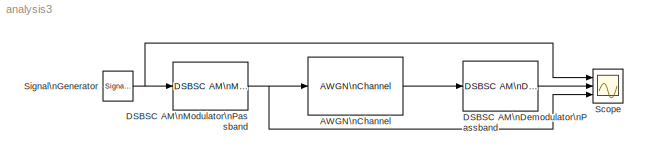
MODEL analysis3
KIND model
BLOCK [Reference] AWGN\nChannel  REF=commchan3/AWGN\nChannel
  EbNodB = 10
  EsNodB = 10
  InputProcessing = Columns as channels (frame based)
  Ports = [1, 1]
  Ps = 0.25
  SID = 4
  SNRdB = 10
  SourceBlock = commchan3/AWGN\nChannel
  SourceProductBaseCode = CM
  SourceProductName = Communications System Toolbox
  SourceType = AWGN Channel
  Tsym = 1
  UserData = DataTag0
  UserDataPersistent = on
  bitsPerSym = 1
  noiseMode = Signal to noise ratio  (Eb/No)
  seed = 67
  variance = 1
BLOCK [Reference] DSBSC AM\nDemodulator\nPassband  REF=commanapbnd3/DSBSC AM\nDemodulator\nPassband
  Fc = 300
  Ph = 0
  Ports = [1, 1]
  Rp = 0.1
  Rs = 50
  SID = 6
  SourceBlock = commanapbnd3/DSBSC AM\nDemodulator\nPassband
  SourceProductBaseCode = CM
  SourceProductName = Communications System Toolbox
  SourceType = DSBSC AM Demodulator Passband
  cf = 300
  method = Butterworth
  n = 4
BLOCK [Reference] DSBSC AM\nModulator\nPassband  REF=commanapbnd3/DSBSC AM\nModulator\nPassband
  Fc = 300
  Ph = 0
  Ports = [1, 1]
  SID = 7
  SourceBlock = commanapbnd3/DSBSC AM\nModulator\nPassband
  SourceProductBaseCode = CM
  SourceProductName = Communications System Toolbox
  SourceType = DSBSC AM Modulator Passband
BLOCK [Scope] Scope
  NumInputPorts = 3
  Ports = [3]
  SID = 5
  ScopeSpecificationString = Simulink.scopes.TimeScopeBlockCfg('CurrentConfiguration', extmgr.ConfigurationSet(extmgr.Configuration('Core','General UI',true),extmgr.Configuration('Core','Source UI',true),extmgr.Configuration('Sources','WiredSimulink',true),extmgr.Configuration('Visuals','Time Domain',true),extmgr.Configuration('Tools','Plot Navigation',true),extmgr.Configuration('Tools','Measurements',true,'Version','2017b'))...<+75ch>
BLOCK [SignalGenerator] Signal\nGenerator
  Frequency = 3
  Ports = [0, 1]
  SID = 1
  VectorParams1D = off
LINE AWGN\nChannel:1 -> DSBSC AM\nDemodulator\nPassband:1
LINE DSBSC AM\nDemodulator\nPassband:1 -> Scope:2
NET DSBSC AM\nModulator\nPassband:1 -> AWGN\nChannel:1, Scope:3
NET Signal\nGenerator:1 -> DSBSC AM\nModulator\nPassband:1, Scope:1
note: NET lines group one-source signal fan-out (src -> all destinations, sorted); 1:1 wires keep LINE
